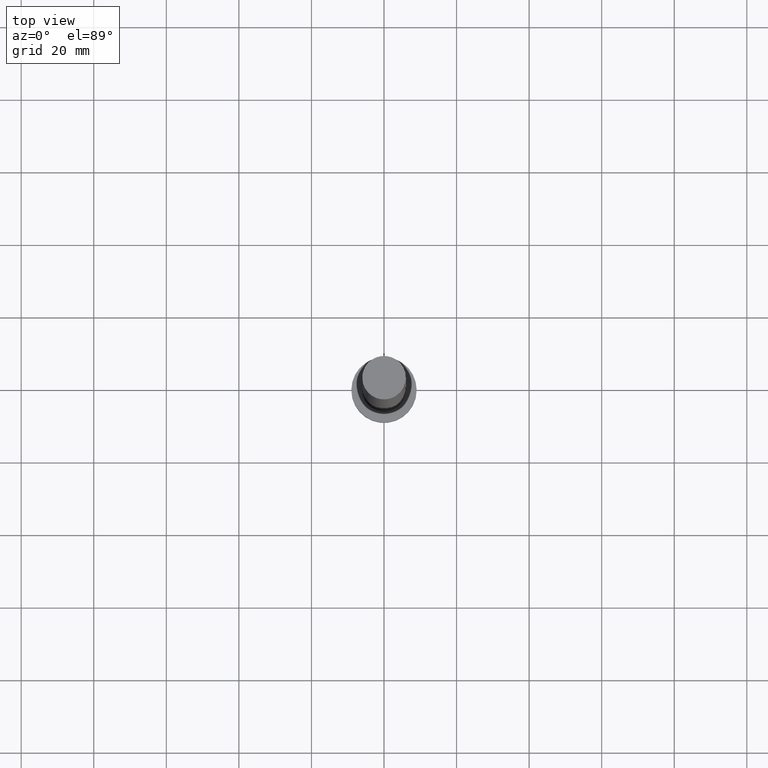
[diagram: clean part render]
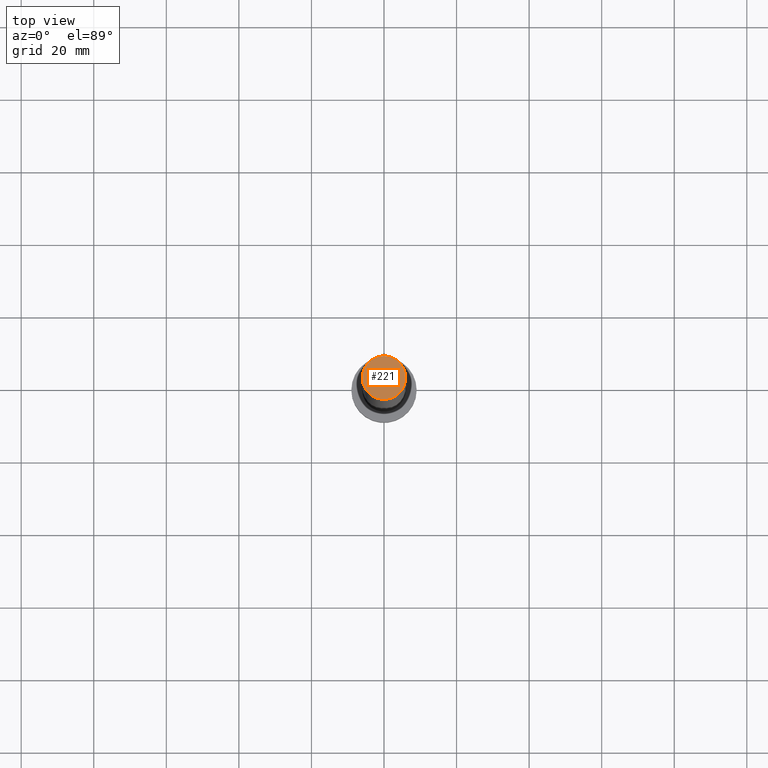
[diagram: same view with one face highlighted and labeled with its STEP entity id]
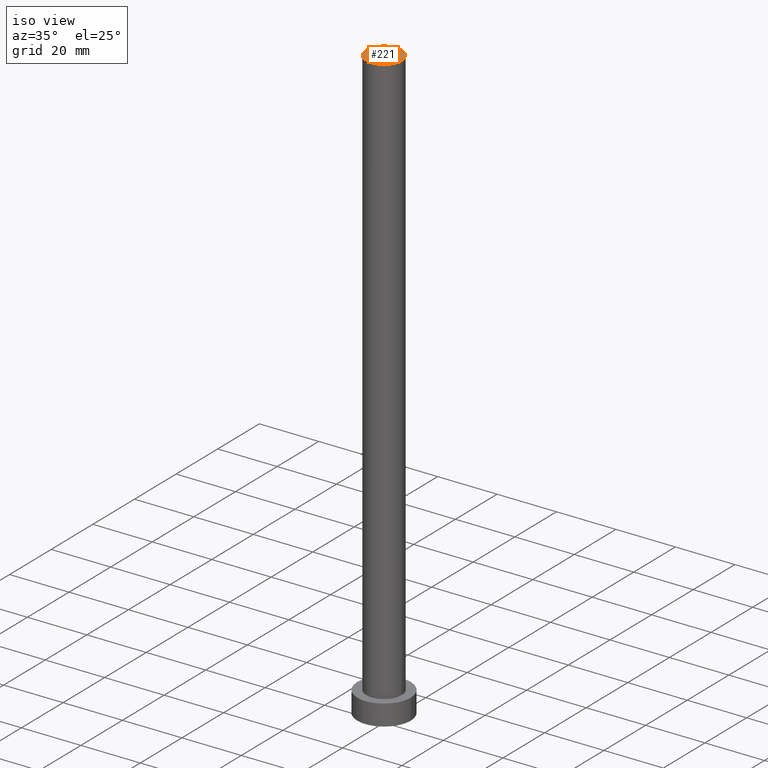
[diagram: same view with one face highlighted and labeled with its STEP entity id]
A machine part, top view. The second image highlights one B-rep face of the part: STEP entity #221.
A second angle (iso view) of the same face is appended — the face is thin or edge-on in the first view.
In plain terms, the highlighted planar face has unit normal (0, 0, 1).
Its self-contained STEP definition (entity closure, byte-faithful):
#16 = CARTESIAN_POINT ( 'NONE',  ( 0.000000000000000000, 0.000000000000000000, 200.0000000000000000 ) ) ;
#29 = DIRECTION ( 'NONE',  ( 1.000000000000000000, 0.000000000000000000, 0.000000000000000000 ) ) ;
#33 = DIRECTION ( 'NONE',  ( 0.000000000000000000, 0.000000000000000000, 1.000000000000000000 ) ) ;
#37 = CARTESIAN_POINT ( 'NONE',  ( 0.000000000000000000, 0.000000000000000000, 200.0000000000000000 ) ) ;
#53 = AXIS2_PLACEMENT_3D ( 'NONE', #187, #200, #29 ) ;
#102 = DIRECTION ( 'NONE',  ( 1.000000000000000000, 0.000000000000000000, -0.000000000000000000 ) ) ;
#107 = EDGE_CURVE ( 'NONE', #136, #118, #137, .T. ) ;
#118 = VERTEX_POINT ( 'NONE', #157 ) ;
#119 = AXIS2_PLACEMENT_3D ( 'NONE', #37, #33, #102 ) ;
#123 = AXIS2_PLACEMENT_3D ( 'NONE', #16, #145, #176 ) ;
#136 = VERTEX_POINT ( 'NONE', #228 ) ;
#137 = CIRCLE ( 'NONE', #53, 6.000000000000000888 ) ;
#145 = DIRECTION ( 'NONE',  ( 0.000000000000000000, 0.000000000000000000, 1.000000000000000000 ) ) ;
#157 = CARTESIAN_POINT ( 'NONE',  ( -6.000000000000000888, 0.000000000000000000, 200.0000000000000000 ) ) ;
#164 = EDGE_CURVE ( 'NONE', #118, #136, #218, .T. ) ;
#175 = FACE_OUTER_BOUND ( 'NONE', #202, .T. ) ;
#176 = DIRECTION ( 'NONE',  ( 1.000000000000000000, 0.000000000000000000, 0.000000000000000000 ) ) ;
#185 = ORIENTED_EDGE ( 'NONE', *, *, #164, .T. ) ;
#187 = CARTESIAN_POINT ( 'NONE',  ( 0.000000000000000000, 0.000000000000000000, 200.0000000000000000 ) ) ;
#194 = PLANE ( 'NONE',  #119 ) ;
#200 = DIRECTION ( 'NONE',  ( 0.000000000000000000, 0.000000000000000000, 1.000000000000000000 ) ) ;
#202 = EDGE_LOOP ( 'NONE', ( #185, #215 ) ) ;
#215 = ORIENTED_EDGE ( 'NONE', *, *, #107, .T. ) ;
#218 = CIRCLE ( 'NONE', #123, 6.000000000000000888 ) ;
#221 = ADVANCED_FACE ( 'NONE', ( #175 ), #194, .T. ) ;
#228 = CARTESIAN_POINT ( 'NONE',  ( 6.000000000000000888, 7.347880794884120722E-16, 200.0000000000000000 ) ) ;